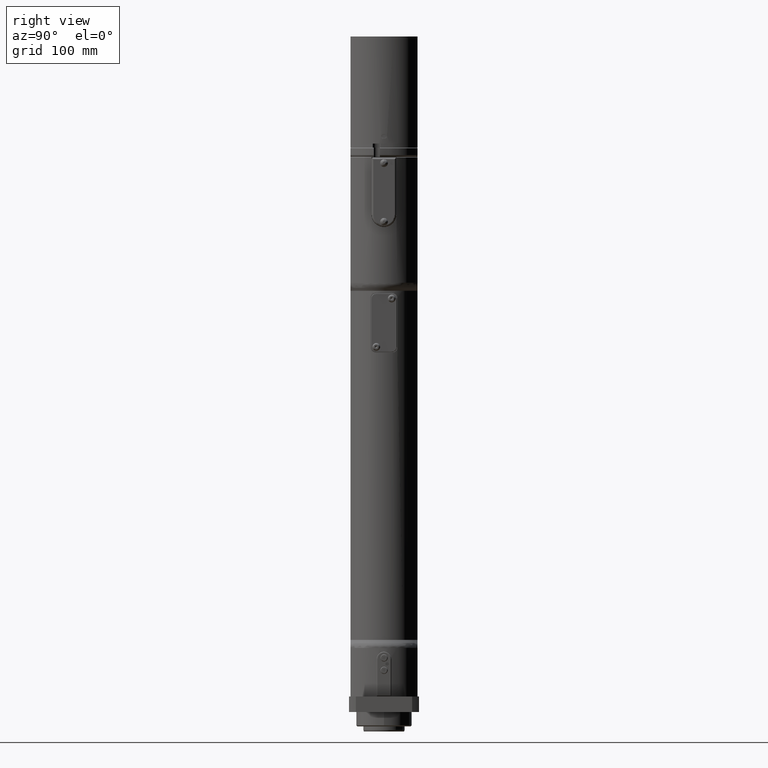
[diagram: clean part render]
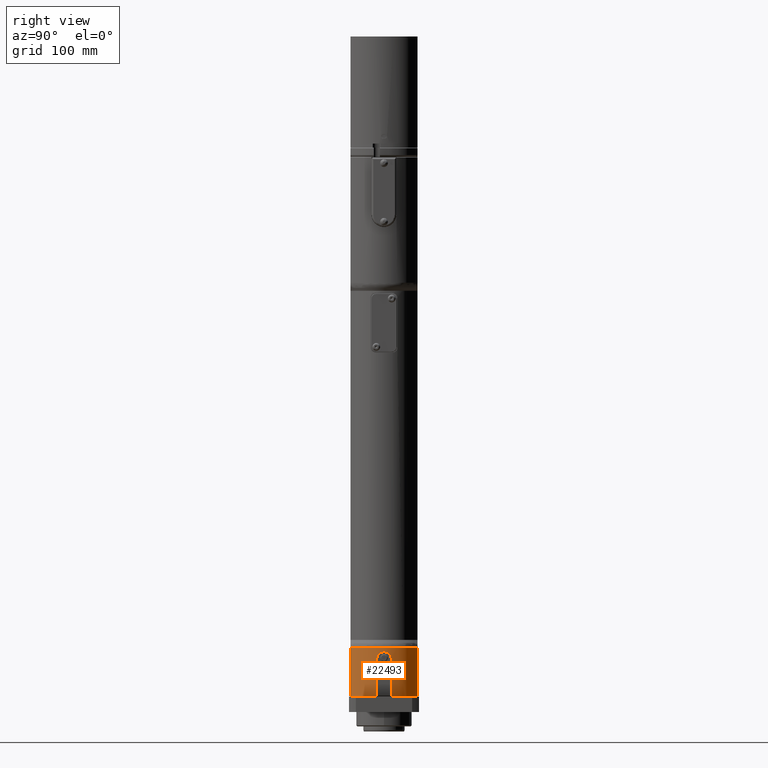
[diagram: same view with one face highlighted and labeled with its STEP entity id]
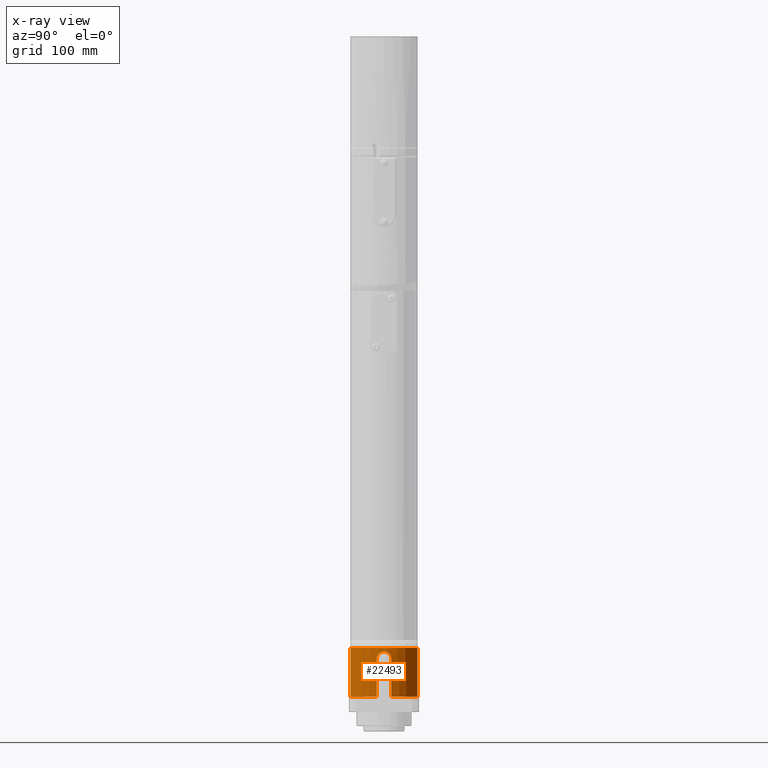
[diagram: x-ray of the same camera — body ghosted, the highlighted face saturated]
A machine part, right view. The second image highlights one B-rep face of the part: STEP entity #22493.
The next image is the same camera in x-ray: the body ghosted, the highlighted face saturated — about 0% of this face is hidden behind the body in this view.
In plain terms, the highlighted cylindrical surface (partial cylindrical patch) has radius 37 mm, axis along (0, 0, 1).
Its self-contained STEP definition (entity closure, byte-faithful):
#659=B_SPLINE_CURVE_WITH_KNOTS('',3,(#32543,#32544,#32545,#32546,#32547,
#32548),.UNSPECIFIED.,.F.,.F.,(4,2,4),(-0.350768995093924,-0.264372898106589,
0.),.UNSPECIFIED.);
#660=B_SPLINE_CURVE_WITH_KNOTS('',3,(#32550,#32551,#32552,#32553,#32554,
#32555,#32556,#32557),.UNSPECIFIED.,.F.,.F.,(4,2,2,4),(0.350768995096671,
0.528745796213177,0.79310688060748,1.05746796500178),.UNSPECIFIED.);
#661=B_SPLINE_CURVE_WITH_KNOTS('',3,(#32559,#32560,#32561,#32562,#32563,
#32564,#32565,#32566),.UNSPECIFIED.,.F.,.F.,(4,2,2,4),(1.05746796500178,
1.32182904939609,1.58619013379039,1.76416693490697),.UNSPECIFIED.);
#662=B_SPLINE_CURVE_WITH_KNOTS('',3,(#32568,#32569,#32570,#32571,#32572,
#32573),.UNSPECIFIED.,.F.,.F.,(4,2,4),(2.11493593000357,2.37930882811016,
2.4657049250975),.UNSPECIFIED.);
#1125=CYLINDRICAL_SURFACE('',#23984,37.);
#1507=CIRCLE('',#23983,37.);
#1508=CIRCLE('',#23985,37.);
#1509=CIRCLE('',#23986,37.);
#2396=FACE_OUTER_BOUND('',#3704,.T.);
#3704=EDGE_LOOP('',(#14308,#14309,#14310,#14311,#14312,#14313,#14314,#14315,
#14316,#14317,#14318,#14319,#14320));
#5112=LINE('',#31919,#6894);
#5197=LINE('',#32514,#6979);
#5199=LINE('',#32535,#6981);
#5200=LINE('',#32539,#6982);
#5201=LINE('',#32541,#6983);
#5202=LINE('',#32574,#6984);
#6894=VECTOR('',#25962,10.);
#6979=VECTOR('',#26271,10.);
#6981=VECTOR('',#26281,10.);
#6982=VECTOR('',#26284,10.);
#6983=VECTOR('',#26285,10.);
#6984=VECTOR('',#26286,10.);
#8674=VERTEX_POINT('',#31913);
#8676=VERTEX_POINT('',#31917);
#8838=VERTEX_POINT('',#32500);
#8839=VERTEX_POINT('',#32513);
#8841=VERTEX_POINT('',#32519);
#8842=VERTEX_POINT('',#32534);
#8843=VERTEX_POINT('',#32536);
#8844=VERTEX_POINT('',#32538);
#8845=VERTEX_POINT('',#32540);
#8846=VERTEX_POINT('',#32542);
#8847=VERTEX_POINT('',#32549);
#8848=VERTEX_POINT('',#32558);
#8849=VERTEX_POINT('',#32567);
#10773=EDGE_CURVE('',#8674,#8676,#5112,.T.);
#10964=EDGE_CURVE('',#8839,#8838,#5197,.T.);
#10968=EDGE_CURVE('',#8841,#8838,#1507,.T.);
#10969=EDGE_CURVE('',#8841,#8842,#5199,.T.);
#10970=EDGE_CURVE('',#8843,#8842,#1508,.T.);
#10971=EDGE_CURVE('',#8843,#8844,#5200,.T.);
#10972=EDGE_CURVE('',#8845,#8844,#5201,.T.);
#10973=EDGE_CURVE('',#8846,#8845,#659,.T.);
#10974=EDGE_CURVE('',#8846,#8847,#660,.T.);
#10975=EDGE_CURVE('',#8847,#8848,#661,.T.);
#10976=EDGE_CURVE('',#8849,#8848,#662,.T.);
#10977=EDGE_CURVE('',#8674,#8849,#5202,.T.);
#10978=EDGE_CURVE('',#8839,#8676,#1509,.T.);
#14308=ORIENTED_EDGE('',*,*,#10968,.F.);
#14309=ORIENTED_EDGE('',*,*,#10969,.T.);
#14310=ORIENTED_EDGE('',*,*,#10970,.F.);
#14311=ORIENTED_EDGE('',*,*,#10971,.T.);
#14312=ORIENTED_EDGE('',*,*,#10972,.F.);
#14313=ORIENTED_EDGE('',*,*,#10973,.F.);
#14314=ORIENTED_EDGE('',*,*,#10974,.T.);
#14315=ORIENTED_EDGE('',*,*,#10975,.T.);
#14316=ORIENTED_EDGE('',*,*,#10976,.F.);
#14317=ORIENTED_EDGE('',*,*,#10977,.F.);
#14318=ORIENTED_EDGE('',*,*,#10773,.T.);
#14319=ORIENTED_EDGE('',*,*,#10978,.F.);
#14320=ORIENTED_EDGE('',*,*,#10964,.T.);
#22493=ADVANCED_FACE('',(#2396),#1125,.T.);
#23983=AXIS2_PLACEMENT_3D('',#32532,#26277,#26278);
#23984=AXIS2_PLACEMENT_3D('',#32533,#26279,#26280);
#23985=AXIS2_PLACEMENT_3D('',#32537,#26282,#26283);
#23986=AXIS2_PLACEMENT_3D('',#32575,#26287,#26288);
#25962=DIRECTION('',(0.,0.,-1.));
#26271=DIRECTION('',(0.,0.,1.));
#26277=DIRECTION('center_axis',(0.,0.,1.));
#26278=DIRECTION('ref_axis',(1.,-7.6571373978539E-16,0.));
#26279=DIRECTION('center_axis',(0.,0.,1.));
#26280=DIRECTION('ref_axis',(1.,-1.01064309961486E-15,0.));
#26281=DIRECTION('',(0.,0.,-1.));
#26282=DIRECTION('center_axis',(0.,0.,-1.));
#26283=DIRECTION('ref_axis',(-1.,0.,0.));
#26284=DIRECTION('',(0.,0.,1.));
#26285=DIRECTION('',(0.,0.,-1.));
#26286=DIRECTION('',(0.,0.,1.));
#26287=DIRECTION('center_axis',(0.,0.,-1.));
#26288=DIRECTION('ref_axis',(-1.,0.,0.));
#31913=CARTESIAN_POINT('',(36.3318042491699,7.,16.));
#31917=CARTESIAN_POINT('',(36.3318042491699,7.00000000000005,15.));
#31919=CARTESIAN_POINT('',(36.3318042491699,7.00000000000005,15.));
#32500=CARTESIAN_POINT('',(17.6847391838274,32.5,62.1243556529821));
#32513=CARTESIAN_POINT('',(17.6847391838274,32.5,15.));
#32514=CARTESIAN_POINT('',(17.6847391838274,32.5,15.));
#32519=CARTESIAN_POINT('',(17.6847391838274,-32.5,62.1243556529821));
#32532=CARTESIAN_POINT('Origin',(0.,0.,62.1243556529821));
#32533=CARTESIAN_POINT('Origin',(0.,0.,15.));
#32534=CARTESIAN_POINT('',(17.6847391838273,-32.5,15.));
#32535=CARTESIAN_POINT('',(17.6847391838274,-32.5,15.));
#32536=CARTESIAN_POINT('',(36.3318042491699,-6.99999999999996,15.));
#32537=CARTESIAN_POINT('Origin',(0.,0.,15.));
#32538=CARTESIAN_POINT('',(36.3318042491699,-6.99999999999996,15.9999999999999));
#32539=CARTESIAN_POINT('',(36.3318042491699,-6.99999999999996,15.));
#32540=CARTESIAN_POINT('',(36.3318042491699,-6.99999999999995,51.5));
#32541=CARTESIAN_POINT('',(36.3318042491699,-7.,15.));
#32542=CARTESIAN_POINT('',(36.5000000000018,-6.06217782647603,55.0000000000248));
#32543=CARTESIAN_POINT('Ctrl Pts',(36.5000000000024,-6.06217782647659,55.000000000025));
#32544=CARTESIAN_POINT('Ctrl Pts',(36.4748245537489,-6.21375764062195,54.737456060526));
#32545=CARTESIAN_POINT('Ctrl Pts',(36.4513785713191,-6.34910072931984,54.4634312270028));
#32546=CARTESIAN_POINT('Ctrl Pts',(36.3671886074386,-6.82344748816038,53.3197318102889));
#32547=CARTESIAN_POINT('Ctrl Pts',(36.3318042491699,-7.,52.3812429936886));
#32548=CARTESIAN_POINT('Ctrl Pts',(36.3318042491699,-7.,51.5));
#32549=CARTESIAN_POINT('',(37.,9.46633086265214E-29,58.5));
#32550=CARTESIAN_POINT('Ctrl Pts',(36.5000000000024,-6.06217782647654,55.0000000000251));
#32551=CARTESIAN_POINT('Ctrl Pts',(36.5518616644424,-5.74992193325755,55.540843072038));
#32552=CARTESIAN_POINT('Ctrl Pts',(36.6110526463371,-5.36734472044517,56.0321502161664));
#32553=CARTESIAN_POINT('Ctrl Pts',(36.7511568003498,-4.32946178094035,57.0700331556712));
#32554=CARTESIAN_POINT('Ctrl Pts',(36.8400440625069,-3.54374917173923,57.6084157694057));
#32555=CARTESIAN_POINT('Ctrl Pts',(36.9653306735113,-1.8197068107328,58.3234572551829));
#32556=CARTESIAN_POINT('Ctrl Pts',(37.,-0.88120361464763,58.5));
#32557=CARTESIAN_POINT('Ctrl Pts',(37.,4.77395900588817E-14,58.5));
#32558=CARTESIAN_POINT('',(36.5000000000017,6.06217782647652,55.0000000000241));
#32559=CARTESIAN_POINT('Ctrl Pts',(37.,4.74620343027254E-14,58.5));
#32560=CARTESIAN_POINT('Ctrl Pts',(37.,0.881203614647726,58.5));
#32561=CARTESIAN_POINT('Ctrl Pts',(36.9653306735113,1.8197068107329,58.3234572551829));
#32562=CARTESIAN_POINT('Ctrl Pts',(36.8400440625069,3.54374917173933,57.6084157694057));
#32563=CARTESIAN_POINT('Ctrl Pts',(36.7511568003497,4.32946178094045,57.0700331556712));
#32564=CARTESIAN_POINT('Ctrl Pts',(36.6110526463371,5.36734472044544,56.0321502161663));
#32565=CARTESIAN_POINT('Ctrl Pts',(36.5518616644423,5.74992193325797,55.5408430720376));
#32566=CARTESIAN_POINT('Ctrl Pts',(36.5000000000023,6.06217782647704,55.0000000000244));
#32567=CARTESIAN_POINT('',(36.3318042491699,7.00000000000005,51.5));
#32568=CARTESIAN_POINT('Ctrl Pts',(36.3318042491699,7.,51.5));
#32569=CARTESIAN_POINT('Ctrl Pts',(36.3318042491699,7.,52.3812429936886));
#32570=CARTESIAN_POINT('Ctrl Pts',(36.3671886074386,6.82344748816038,53.3197318102889));
#32571=CARTESIAN_POINT('Ctrl Pts',(36.4513785713191,6.34910072931984,54.4634312270028));
#32572=CARTESIAN_POINT('Ctrl Pts',(36.4748245537488,6.21375764062235,54.7374560605252));
#32573=CARTESIAN_POINT('Ctrl Pts',(36.5000000000023,6.06217782647703,55.0000000000243));
#32574=CARTESIAN_POINT('',(36.3318042491699,7.,15.));
#32575=CARTESIAN_POINT('Origin',(0.,0.,15.));